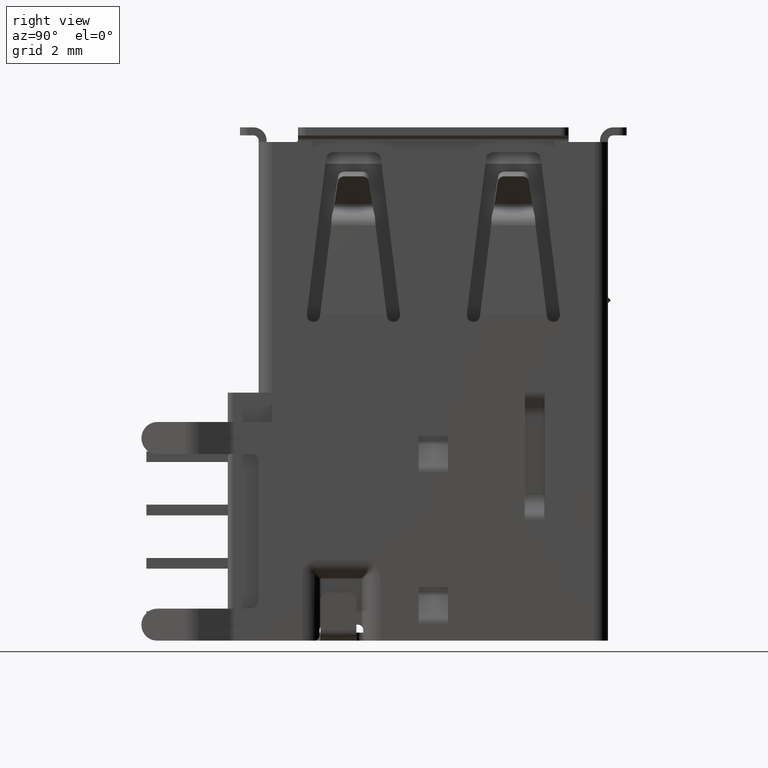
[diagram: clean part render]
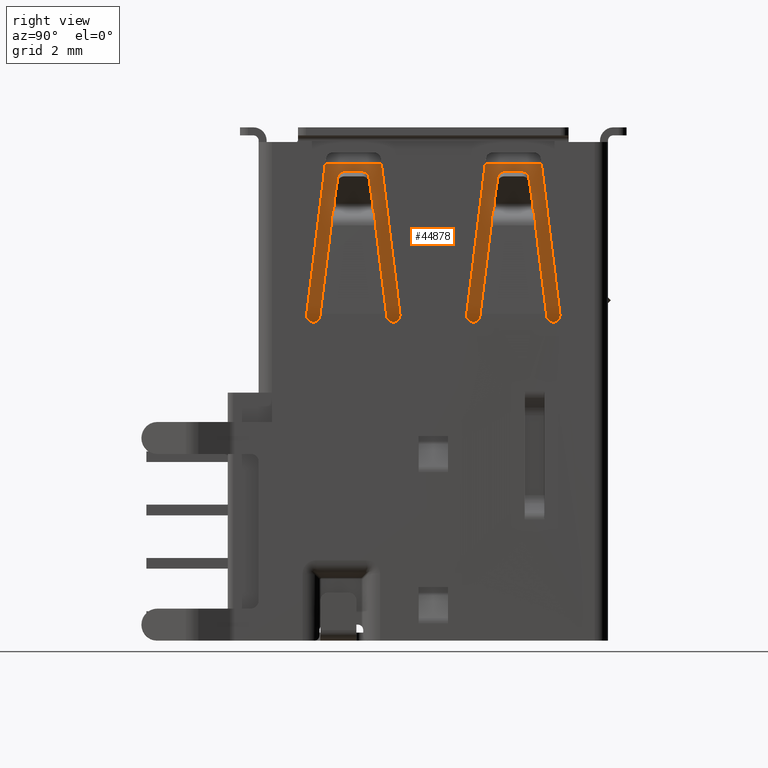
[diagram: same view with one face highlighted and labeled with its STEP entity id]
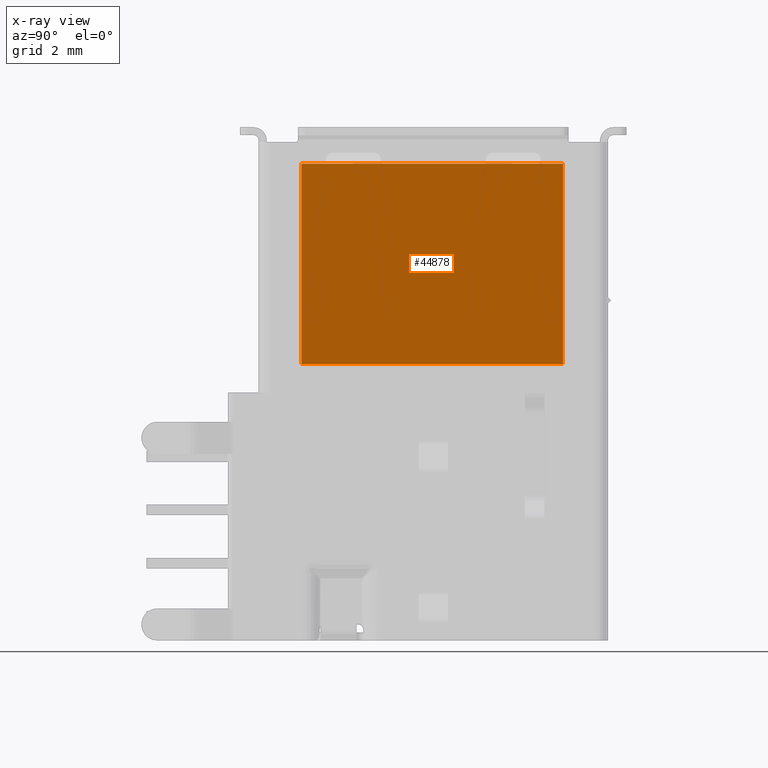
[diagram: x-ray of the same camera — body ghosted, the highlighted face saturated]
A machine part, right view. The second image highlights one B-rep face of the part: STEP entity #44878.
The next image is the same camera in x-ray: the body ghosted, the highlighted face saturated — about 0% of this face is hidden behind the body in this view.
In plain terms, the highlighted planar face has unit normal (1, 0, -0).
Its self-contained STEP definition (entity closure, byte-faithful):
#1569 = LINE ( 'NONE', #39449, #15752 ) ;
#2148 = EDGE_CURVE ( 'NONE', #26502, #8001, #1569, .T. ) ;
#2359 = CARTESIAN_POINT ( 'NONE',  ( -17.88397459658670030, 4.869999998625999638, -1.020000000000000018 ) ) ;
#6363 = EDGE_CURVE ( 'NONE', #25913, #26502, #41621, .T. ) ;
#8001 = VERTEX_POINT ( 'NONE', #37060 ) ;
#8219 = PLANE ( 'NONE',  #18695 ) ;
#8326 = ORIENTED_EDGE ( 'NONE', *, *, #33796, .T. ) ;
#8346 = DIRECTION ( 'NONE',  ( 0.0000000000000000000, -1.000000000000000000, -0.0000000000000000000 ) ) ;
#9033 = VECTOR ( 'NONE', #11292, 1000.000000000000000 ) ;
#9854 = CARTESIAN_POINT ( 'NONE',  ( -10.36999999999999922, -4.949999999392001193, -1.020000000000000018 ) ) ;
#11292 = DIRECTION ( 'NONE',  ( -1.000000000000000000, -0.0000000000000000000, 0.0000000000000000000 ) ) ;
#11529 = CARTESIAN_POINT ( 'NONE',  ( -14.12698729799999953, 4.869999997251999169, -1.020000000000000018 ) ) ;
#11711 = LINE ( 'NONE', #40730, #15039 ) ;
#15039 = VECTOR ( 'NONE', #8346, 1000.000000000000000 ) ;
#15051 = ORIENTED_EDGE ( 'NONE', *, *, #21219, .T. ) ;
#15752 = VECTOR ( 'NONE', #21221, 1000.000000000000000 ) ;
#18695 = AXIS2_PLACEMENT_3D ( 'NONE', #22363, #41537, #26209 ) ;
#21219 = EDGE_CURVE ( 'NONE', #36490, #25913, #11711, .T. ) ;
#21221 = DIRECTION ( 'NONE',  ( -0.0000000000000000000, 1.000000000000000000, 0.0000000000000000000 ) ) ;
#21588 = VECTOR ( 'NONE', #34925, 1000.000000000000000 ) ;
#22363 = CARTESIAN_POINT ( 'NONE',  ( -14.12698729799999953, -0.04000000000000000083, -1.020000000000000018 ) ) ;
#25913 = VERTEX_POINT ( 'NONE', #42150 ) ;
#26209 = DIRECTION ( 'NONE',  ( 1.000000000000000000, 0.0000000000000000000, -0.0000000000000000000 ) ) ;
#26502 = VERTEX_POINT ( 'NONE', #9854 ) ;
#33719 = EDGE_LOOP ( 'NONE', ( #36131, #8326, #15051, #45614 ) ) ;
#33796 = EDGE_CURVE ( 'NONE', #8001, #36490, #44150, .T. ) ;
#34443 = CARTESIAN_POINT ( 'NONE',  ( -14.12698729799999953, -4.949999998784001320, -1.020000000000000018 ) ) ;
#34925 = DIRECTION ( 'NONE',  ( 1.000000000000000000, 0.0000000000000000000, -0.0000000000000000000 ) ) ;
#36131 = ORIENTED_EDGE ( 'NONE', *, *, #2148, .T. ) ;
#36490 = VERTEX_POINT ( 'NONE', #2359 ) ;
#37060 = CARTESIAN_POINT ( 'NONE',  ( -10.36999999999999922, 4.869999998625999638, -1.020000000000000018 ) ) ;
#39449 = CARTESIAN_POINT ( 'NONE',  ( -10.36999999999999922, -0.04000000000000000083, -1.020000000000000018 ) ) ;
#40730 = CARTESIAN_POINT ( 'NONE',  ( -17.88397459717196369, -0.04000000000000000083, -1.020000000000000018 ) ) ;
#41304 = FACE_OUTER_BOUND ( 'NONE', #33719, .T. ) ;
#41537 = DIRECTION ( 'NONE',  ( 0.0000000000000000000, 0.0000000000000000000, 1.000000000000000000 ) ) ;
#41621 = LINE ( 'NONE', #34443, #21588 ) ;
#42150 = CARTESIAN_POINT ( 'NONE',  ( -17.88397459658670030, -4.949999999392001193, -1.020000000000000018 ) ) ;
#44150 = LINE ( 'NONE', #11529, #9033 ) ;
#44878 = ADVANCED_FACE ( 'NONE', ( #41304 ), #8219, .T. ) ;
#45614 = ORIENTED_EDGE ( 'NONE', *, *, #6363, .T. ) ;